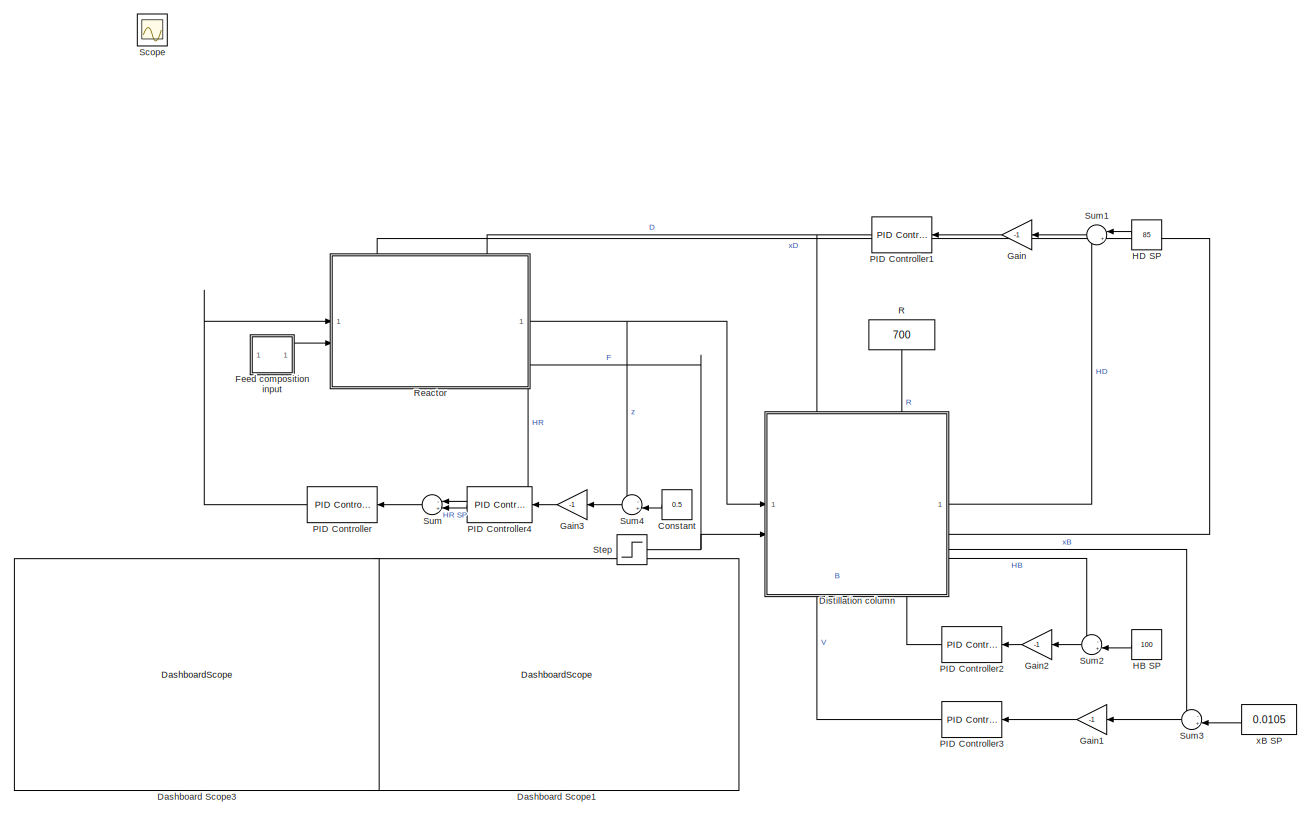
[diagram: root canvas - part 1/2, most of the canvas]
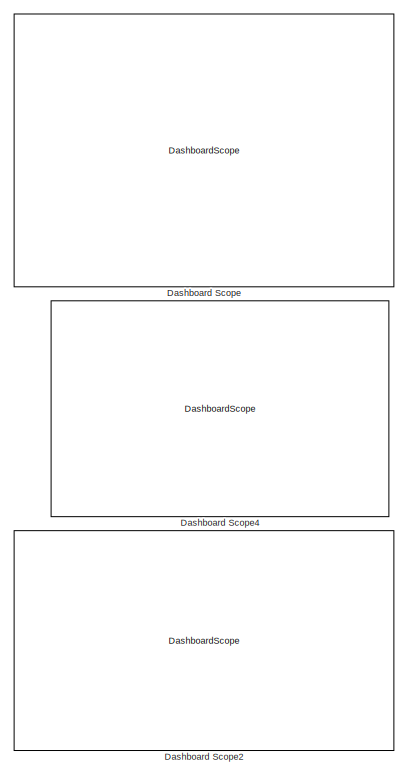
[diagram: root canvas - part 2/2, right side, full height]
MODEL slx_b76b77ea8b90
KIND model
CONFIG AbsTol = auto
CONFIG EnableMultiTasking = off
CONFIG FixedStep = auto
CONFIG MaxStep = auto
CONFIG MinStep = auto
CONFIG RelTol = 1e-3
CONFIG SampleTimeConstraint = Unconstrained
CONFIG SolverName = VariableStepAuto
CONFIG StartTime = 0.0
CONFIG StopTime = 1200
BLOCK [Constant] Constant
  Value = 0.5
BLOCK [DashboardScope] Dashboard Scope
BLOCK [DashboardScope] Dashboard Scope1
BLOCK [DashboardScope] Dashboard Scope2
  ScaleAtStop = off
  Ymax = 0.05
  Ymin = 0
BLOCK [DashboardScope] Dashboard Scope3
BLOCK [DashboardScope] Dashboard Scope4
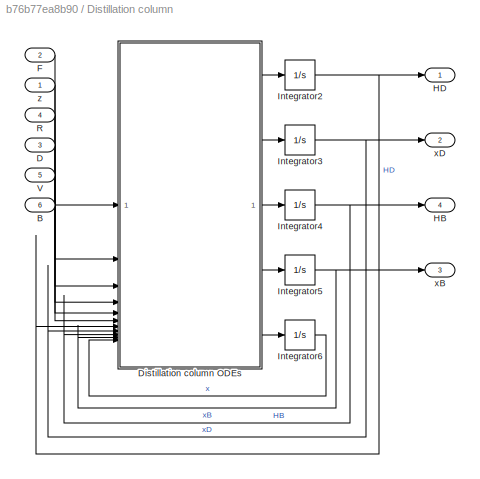
BLOCK [SubSystem] Distillation column
  PortSchema = {"entries":[{"content":{"sides":[{"content":{"connectorIds":["In1","In2"]},"type":"ConnectorPlacement.EquallySpacedRectSide","uuid":"ab420837-8800-483a-94a8-8143737a47c2"},{"content":{"connectorIds":["Out1","Out2","Out3","Out4"],"side":"RIGHT"},"type":"ConnectorPlacement.EquallySpacedRectSide","uuid":"9920b73b-e391-416a-a827-f17b334a8e6d"},{"content":{"connectorIds":["In3","In4"],"side":"TOP"},"ty...<+433ch>
BLOCK [Inport] Distillation column/B
  Port = 6
BLOCK [Inport] Distillation column/D
  Port = 3
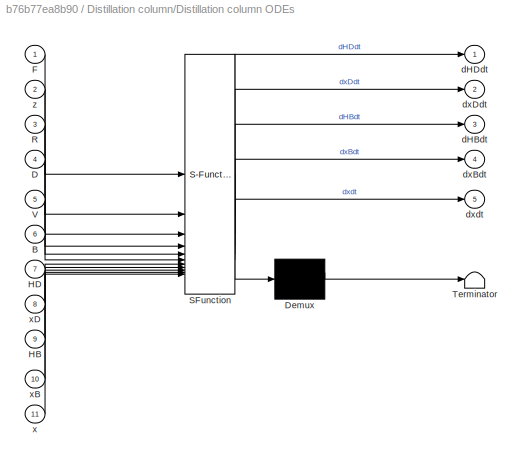
BLOCK [SubSystem] Distillation column/Distillation column ODEs
  ErrorFcn = Stateflow.Translate.translate
  PermitHierarchicalResolution = ExplicitOnly
  SFBlockType = MATLAB Function
  TreatAsAtomicUnit = on
BLOCK [Demux] Distillation column/Distillation column ODEs/ Demux 
  Outputs = 1
BLOCK [S-Function] Distillation column/Distillation column ODEs/ SFunction 
  EnableBusSupport = on
  FunctionName = sf_sfun
  PortCounts = [11 6]
  SFcnIsStateOwnerBlock = off
  SFunctionDeploymentMode = off
  Tag = Stateflow S-Function 1
BLOCK [Terminator] Distillation column/Distillation column ODEs/ Terminator 
BLOCK [Inport] Distillation column/Distillation column ODEs/B
  Port = 6
BLOCK [Inport] Distillation column/Distillation column ODEs/D
  Port = 4
BLOCK [Inport] Distillation column/Distillation column ODEs/F
BLOCK [Inport] Distillation column/Distillation column ODEs/HB
  Port = 9
BLOCK [Inport] Distillation column/Distillation column ODEs/HD
  Port = 7
BLOCK [Inport] Distillation column/Distillation column ODEs/R
  Port = 3
BLOCK [Inport] Distillation column/Distillation column ODEs/V
  Port = 5
BLOCK [Outport] Distillation column/Distillation column ODEs/dHBdt
  Port = 3
BLOCK [Outport] Distillation column/Distillation column ODEs/dHDdt
BLOCK [Outport] Distillation column/Distillation column ODEs/dxBdt
  Port = 4
BLOCK [Outport] Distillation column/Distillation column ODEs/dxDdt
  Port = 2
BLOCK [Outport] Distillation column/Distillation column ODEs/dxdt
  Port = 5
BLOCK [Inport] Distillation column/Distillation column ODEs/x
  Port = 11
BLOCK [Inport] Distillation column/Distillation column ODEs/xB
  Port = 10
BLOCK [Inport] Distillation column/Distillation column ODEs/xD
  Port = 8
BLOCK [Inport] Distillation column/Distillation column ODEs/z
  Port = 2
BLOCK [Inport] Distillation column/F
  Port = 2
BLOCK [Outport] Distillation column/HB
  Port = 4
BLOCK [Outport] Distillation column/HD
BLOCK [Integrator] Distillation column/Integrator2
  InitialCondition = 85
  LimitOutput = on
  LowerSaturationLimit = 0
BLOCK [Integrator] Distillation column/Integrator3
  InitialCondition = 0.95
  LimitOutput = on
  LowerSaturationLimit = 0
  UpperSaturationLimit = 1
BLOCK [Integrator] Distillation column/Integrator4
  InitialCondition = 124.738
  LimitOutput = on
  LowerSaturationLimit = 0
BLOCK [Integrator] Distillation column/Integrator5
  InitialCondition = 0.0105
  LimitOutput = on
  LowerSaturationLimit = 0
  UpperSaturationLimit = 1
BLOCK [Integrator] Distillation column/Integrator6
  InitialCondition = 0.5*ones(20,1)
  LimitOutput = on
  LowerSaturationLimit = zeros(20,1)
  UpperSaturationLimit = ones(20,1)
BLOCK [Inport] Distillation column/R
  Port = 4
BLOCK [Inport] Distillation column/V
  Port = 5
BLOCK [Outport] Distillation column/xB
  Port = 3
BLOCK [Outport] Distillation column/xD
  Port = 2
BLOCK [Inport] Distillation column/z
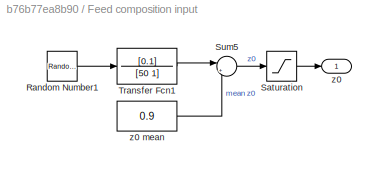
BLOCK [SubSystem] Feed composition input
BLOCK [RandomNumber] Feed composition input/Random Number1
  SampleTime = 30
BLOCK [Saturate] Feed composition input/Saturation
  LowerLimit = 0.8
  UpperLimit = 1
BLOCK [Sum] Feed composition input/Sum5
  Inputs = |++
BLOCK [TransferFcn] Feed composition input/Transfer Fcn1
  Denominator = [50 1]
  Numerator = [0.1]
BLOCK [Outport] Feed composition input/z0
BLOCK [Constant] Feed composition input/z0 mean
  Value = 0.9
BLOCK [Gain] Gain
  Gain = -1
BLOCK [Gain] Gain1
  Gain = -1
BLOCK [Gain] Gain2
  Gain = -1
BLOCK [Gain] Gain3
  Gain = -1
BLOCK [Constant] HB SP
  Value = 100
BLOCK [Constant] HD SP
  Value = 85
BLOCK [Reference] PID Controller  REF=slpidlib/PID Controller
  LibrarySourceBlock = simulink/Continuous/PID Controller
  NameLocation = right
  SourceBlock = slpidlib/PID Controller
  SourceType = PID 1dof
BLOCK [Reference] PID Controller1  REF=slpidlib/PID Controller
  LibrarySourceBlock = simulink/Continuous/PID Controller
  SourceBlock = slpidlib/PID Controller
  SourceType = PID 1dof
BLOCK [Reference] PID Controller2  REF=slpidlib/PID Controller
  LibrarySourceBlock = simulink/Continuous/PID Controller
  SourceBlock = slpidlib/PID Controller
  SourceType = PID 1dof
BLOCK [Reference] PID Controller3  REF=slpidlib/PID Controller
  LibrarySourceBlock = simulink/Continuous/PID Controller
  SourceBlock = slpidlib/PID Controller
  SourceType = PID 1dof
BLOCK [Reference] PID Controller4  REF=slpidlib/PID Controller
  LibrarySourceBlock = simulink/Continuous/PID Controller
  SourceBlock = slpidlib/PID Controller
  SourceType = PID 1dof
BLOCK [Constant] R
  NameLocation = right
  Value = 700
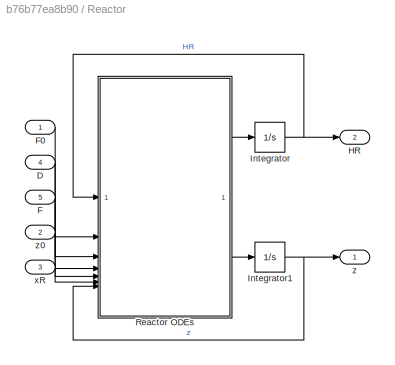
BLOCK [SubSystem] Reactor
  PortSchema = {"entries":[{"content":{"sides":[{"content":{"connectorIds":["In1","In2"]},"type":"ConnectorPlacement.EquallySpacedRectSide","uuid":"b3a1644d-c0d9-45f7-9186-664ea9b1d498"},{"content":{"connectorIds":["Out1","In5"],"side":"RIGHT"},"type":"ConnectorPlacement.EquallySpacedRectSide","uuid":"a66bb60f-7391-4359-960b-fc3938d0b523"},{"content":{"connectorIds":["In3","In4"],"side":"TOP"},"type":"ConnectorP...<+413ch>
BLOCK [Inport] Reactor/D
  Port = 4
BLOCK [Inport] Reactor/F
  Port = 5
BLOCK [Inport] Reactor/F0
BLOCK [Outport] Reactor/HR
  Port = 2
BLOCK [Integrator] Reactor/Integrator
  InitialCondition = 1088.622
BLOCK [Integrator] Reactor/Integrator1
  InitialCondition = 0.5
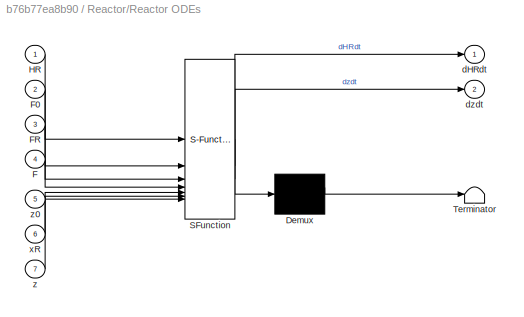
BLOCK [SubSystem] Reactor/Reactor ODEs
  ErrorFcn = Stateflow.Translate.translate
  PermitHierarchicalResolution = ExplicitOnly
  SFBlockType = MATLAB Function
  TreatAsAtomicUnit = on
BLOCK [Demux] Reactor/Reactor ODEs/ Demux 
  Outputs = 1
BLOCK [S-Function] Reactor/Reactor ODEs/ SFunction 
  EnableBusSupport = on
  FunctionName = sf_sfun
  PortCounts = [7 3]
  SFcnIsStateOwnerBlock = off
  SFunctionDeploymentMode = off
  Tag = Stateflow S-Function 2
BLOCK [Terminator] Reactor/Reactor ODEs/ Terminator 
BLOCK [Inport] Reactor/Reactor ODEs/F
  Port = 4
BLOCK [Inport] Reactor/Reactor ODEs/F0
  Port = 2
BLOCK [Inport] Reactor/Reactor ODEs/FR
  Port = 3
BLOCK [Inport] Reactor/Reactor ODEs/HR
BLOCK [Outport] Reactor/Reactor ODEs/dHRdt
BLOCK [Outport] Reactor/Reactor ODEs/dzdt
  Port = 2
BLOCK [Inport] Reactor/Reactor ODEs/xR
  Port = 6
BLOCK [Inport] Reactor/Reactor ODEs/z
  Port = 7
BLOCK [Inport] Reactor/Reactor ODEs/z0
  Port = 5
BLOCK [Inport] Reactor/xR
  Port = 3
BLOCK [Outport] Reactor/z
BLOCK [Inport] Reactor/z0
  Port = 2
BLOCK [Scope] Scope
  Floating = off
  IOType = viewer
  NumInputPorts = 1
  ScopeSpecificationString = Simulink.scopes.TimeScopeBlockCfg('CurrentConfiguration', extmgr.ConfigurationSet(extmgr.Configuration('Core','General UI',true,'FigureColor',[1 1 1]),extmgr.Configuration('Core','Source UI',true),extmgr.Configuration('Sources','WiredSimulink',true,'DataLoggingVariableName','ScopeData1'),extmgr.Configuration('Visuals','Time Domain',true,'SerializedDisplays',{struct('MinYLimReal','1049.64529','MaxY...<+1449ch>
BLOCK [Step] Step
  After = 550
  Before = 435
  SampleTime = 0
  Time = 400
BLOCK [Sum] Sum
  Inputs = -+|
BLOCK [Sum] Sum1
  Inputs = |+-
BLOCK [Sum] Sum2
  Inputs = -+|
BLOCK [Sum] Sum3
  Inputs = -+|
BLOCK [Sum] Sum4
  Inputs = -+|
BLOCK [Constant] xB SP
  Value = 0.0105
LINE Constant:1 -> Sum4:2
LINE Distillation column/B:1 -> Distillation column/Distillation column ODEs:6
LINE Distillation column/D:1 -> Distillation column/Distillation column ODEs:4
LINE Distillation column/Distillation column ODEs:1 -> Distillation column/Integrator2:1
LINE Distillation column/Distillation column ODEs:2 -> Distillation column/Integrator3:1
LINE Distillation column/Distillation column ODEs:3 -> Distillation column/Integrator4:1
LINE Distillation column/Distillation column ODEs:4 -> Distillation column/Integrator5:1
LINE Distillation column/Distillation column ODEs:5 -> Distillation column/Integrator6:1
LINE Distillation column/F:1 -> Distillation column/Distillation column ODEs:1
NET Distillation column/Integrator2:1 -> Distillation column/Distillation column ODEs:7, Distillation column/HD:1
NET Distillation column/Integrator3:1 -> Distillation column/Distillation column ODEs:8, Distillation column/xD:1
NET Distillation column/Integrator4:1 -> Distillation column/Distillation column ODEs:9, Distillation column/HB:1
NET Distillation column/Integrator5:1 -> Distillation column/Distillation column ODEs:10, Distillation column/xB:1
LINE Distillation column/Integrator6:1 -> Distillation column/Distillation column ODEs:11
LINE Distillation column/R:1 -> Distillation column/Distillation column ODEs:3
LINE Distillation column/V:1 -> Distillation column/Distillation column ODEs:5
LINE Distillation column/z:1 -> Distillation column/Distillation column ODEs:2
LINE Distillation column:1 -> Sum1:2
LINE Distillation column:2 -> Reactor:3
LINE Distillation column:3 -> Sum3:1
LINE Distillation column:4 -> Sum2:1
LINE Feed composition input/Random Number1:1 -> Feed composition input/Transfer Fcn1:1
LINE Feed composition input/Saturation:1 -> Feed composition input/z0:1
LINE Feed composition input/Sum5:1 -> Feed composition input/Saturation:1
LINE Feed composition input/Transfer Fcn1:1 -> Feed composition input/Sum5:1
LINE Feed composition input/z0 mean:1 -> Feed composition input/Sum5:2
LINE Feed composition input:1 -> Reactor:2
LINE Gain1:1 -> PID Controller3:1
LINE Gain2:1 -> PID Controller2:1
LINE Gain3:1 -> PID Controller4:1
LINE Gain:1 -> PID Controller1:1
LINE HB SP:1 -> Sum2:2
LINE HD SP:1 -> Sum1:1
NET PID Controller1:1 -> Distillation column:3, Reactor:4
LINE PID Controller2:1 -> Distillation column:6
LINE PID Controller3:1 -> Distillation column:5
LINE PID Controller4:1 -> Sum:2
LINE PID Controller:1 -> Reactor:1
LINE R:1 -> Distillation column:4
LINE Reactor/D:1 -> Reactor/Reactor ODEs:3
LINE Reactor/F0:1 -> Reactor/Reactor ODEs:2
LINE Reactor/F:1 -> Reactor/Reactor ODEs:4
NET Reactor/Integrator1:1 -> Reactor/Reactor ODEs:7, Reactor/z:1
NET Reactor/Integrator:1 -> Reactor/HR:1, Reactor/Reactor ODEs:1
LINE Reactor/Reactor ODEs:1 -> Reactor/Integrator:1
LINE Reactor/Reactor ODEs:2 -> Reactor/Integrator1:1
LINE Reactor/xR:1 -> Reactor/Reactor ODEs:6
LINE Reactor/z0:1 -> Reactor/Reactor ODEs:5
NET Reactor:1 -> Distillation column:1, Sum4:1
LINE Reactor:2 -> Sum:1
NET Step:1 -> Distillation column:2, Reactor:5
LINE Sum1:1 -> Gain:1
LINE Sum2:1 -> Gain2:1
LINE Sum3:1 -> Gain1:1
LINE Sum4:1 -> Gain3:1
LINE Sum:1 -> PID Controller:1
LINE xB SP:1 -> Sum3:2
note: NET lines group one-source signal fan-out (src -> all destinations, sorted); 1:1 wires keep LINE
CHART Distillation column/Distillation column ODEs states=1 transitions=1
  STATE_LABEL 'eML_blk_kernel()'
  STATE_LABEL 'SCRIPT:\nfunction [dHDdt, dxDdt, dHBdt, dxBdt, dxdt] = distillationODEs(F, z, R, D, V, B, HD, xD, HB, xB, x)\n% Inputs:\n% F: Feed flowrate (kmol/hr) [Reactor product flowrate in full model]\n% z: Feed mol fraction (~) [Reactor product composition in full model]\n% R: Reflux flowrate (kmol/hr)\n% D: Distillate flowrate (kmol/hr)\n% V: Reboil flowrate (kmol/hr)\n% B: Bottoms flowrate (kmol/hr)\n% HD: Conden...<+1446ch>'
CHART Reactor/Reactor ODEs states=1 transitions=1
  STATE_LABEL 'eML_blk_kernel()'
  STATE_LABEL 'SCRIPT:\nfunction [dHRdt, dzdt] = reactorODEs(HR, F0, FR, F, z0, xR, z)\n% Inputs:\n% HR: Reactor holdup (kmol)\n% F0: Feed flowrate (kmol/hr)\n% FR: Recylce flowrate (kmol/hr) [Distillate flowrate in full model]\n% F: Reactor product flowrate (kmol/hr)\n% z0: Reactor feed mol fraction (~)\n% xR: Recycle mol fraction (~) [Distillate mol fraction in full model]\n% z: Reactor product mol fraction (~)\n\n% Mode...<+145ch>'
CHART  states=0 transitions=0
CHART  states=0 transitions=0
